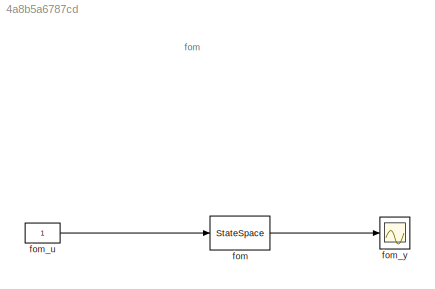
MODEL slx_4a8b5a6787cd
KIND model
BLOCK [StateSpace] fom
  A = fom_sys.sys.a
  B = fom_sys.sys.b
  C = fom_sys.sys.c
  D = fom_sys.sys.d
  Ports = [1, 1]
  X0 = fom_sys.x0_lb
BLOCK [Constant] fom_u
BLOCK [Scope] fom_y
  Floating = off
  NumInputPorts = 1
  Ports = [1]
  SaveName = ScopeData7
  ShowLegends = off
ANNOTATION (root): fom
LINE fom:1 -> fom_y:1
LINE fom_u:1 -> fom:1
